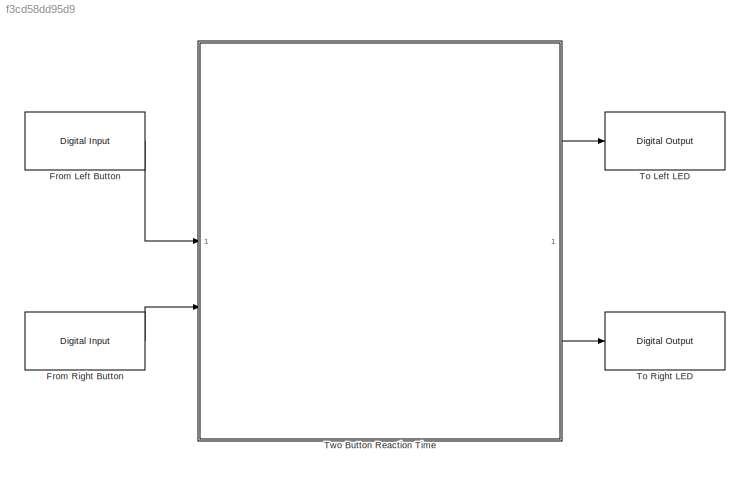
MODEL slx_f3cd58dd95d9
KIND model
CONFIG AbsTol = auto
CONFIG EnableMultiTasking = on
CONFIG FixedStep = 0.001
CONFIG MaxStep = auto
CONFIG MinStep = auto
CONFIG RelTol = 1e-3
CONFIG SampleTimeConstraint = Unconstrained
CONFIG SolverName = FixedStepAuto
CONFIG StartTime = 0.0
CONFIG StopTime = Inf
BLOCK [Reference] From Left Button  REF=arduinolib/Digital Input
  SourceBlock = arduinolib/Digital Input
  SourceType = Arduino Digital Input
BLOCK [Reference] From Right Button  REF=arduinolib/Digital Input
  SourceBlock = arduinolib/Digital Input
  SourceType = Arduino Digital Input
BLOCK [Reference] To Left LED  REF=arduinolib/Digital Output
  SourceBlock = arduinolib/Digital Output
  SourceType = Arduino Digital Output
BLOCK [Reference] To Right LED  REF=arduinolib/Digital Output
  SourceBlock = arduinolib/Digital Output
  SourceType = Arduino Digital Output
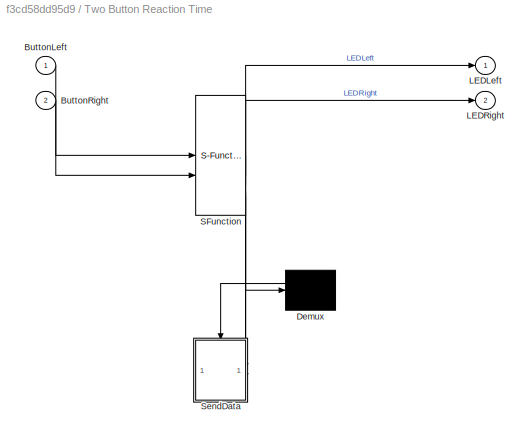
BLOCK [SubSystem] Two Button Reaction Time
  ErrorFcn = Stateflow.Translate.translate
  PermitHierarchicalResolution = ExplicitOnly
  SFBlockType = Chart
  TreatAsAtomicUnit = on
BLOCK [Demux] Two Button Reaction Time/ Demux 
  Outputs = 1
BLOCK [S-Function] Two Button Reaction Time/ SFunction 
  EnableBusSupport = on
  FunctionName = sf_sfun
  PortCounts = [2 5]
  SFcnIsStateOwnerBlock = off
  SFunctionDeploymentMode = off
  Tag = Stateflow S-Function 3
BLOCK [Inport] Two Button Reaction Time/ButtonLeft
BLOCK [Inport] Two Button Reaction Time/ButtonRight
  Port = 2
BLOCK [Outport] Two Button Reaction Time/LEDLeft
BLOCK [Outport] Two Button Reaction Time/LEDRight
  Port = 2
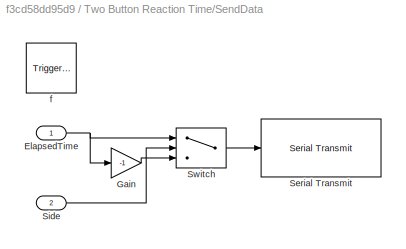
BLOCK [SubSystem] Two Button Reaction Time/SendData
  PreDeleteFcn = Stateflow.SLINSF.SimulinkMan.removePreDeleteFcn
  UndoDeleteFcn = Stateflow.SLINSF.SimulinkMan.restorePreDeleteFcn
BLOCK [Inport] Two Button Reaction Time/SendData/ElapsedTime
  OutDataTypeStr = double
  PortDimensions = 1
  SignalType = real
  VarSizeSig = No
BLOCK [Gain] Two Button Reaction Time/SendData/Gain
  Gain = -1
BLOCK [Reference] Two Button Reaction Time/SendData/Serial Transmit  REF=arduinolib/Serial Transmit
  SourceBlock = arduinolib/Serial Transmit
  SourceType = Arduino Serial Transmit
BLOCK [Inport] Two Button Reaction Time/SendData/Side
  OutDataTypeStr = double
  Port = 2
  PortDimensions = 1
  SignalType = real
  VarSizeSig = No
BLOCK [Switch] Two Button Reaction Time/SendData/Switch
  Criteria = u2 > Threshold
  InputSameDT = off
  SaturateOnIntegerOverflow = off
  Threshold = 1
BLOCK [TriggerPort] Two Button Reaction Time/SendData/f
  CopyFcn = Stateflow.SLINSF.SimulinkMan.removeBlockPreDeleteFcn
  PreDeleteFcn = Stateflow.SLINSF.SimulinkMan.unsafePredeleteFcn
  StatesWhenEnabling = held
  TriggerType = function-call
  VariantControl = (inherit)
LINE From Left Button:1 -> Two Button Reaction Time:1
LINE From Right Button:1 -> Two Button Reaction Time:2
LINE Two Button Reaction Time:1 -> To Left LED:1
LINE Two Button Reaction Time:2 -> To Right LED:1
CHART Two Button Reaction Time states=8 transitions=9
  STATE_LABEL 'SendData(ElapsedTime,Side)'
  STATE_LABEL 'InitialState\nentry:\nStep = 0; % First step\nLEDRight = 1; % Right LED turned on\nLEDLeft = 1; % Left LED turned off'
  STATE_LABEL 'GameOn\nentry:\nLEDRight = 0;\nLEDLeft = 0;\nStep = Step + 1;\nSide = LeftRightSequence(Step);\nTimeStep = TimeStepSequence(Step);\n'
  STATE_LABEL 'y = LeftRightSequence(u)'
  STATE_LABEL 'SCRIPT:\nfunction y = LeftRightSequence(u)\n    Sequence = [1,1,2,2,2,1,2,1,1,2,2,2,2,1,2,1,2,1,1,1,1,2,1,1,2,2,1,2,1,1,2,2,2,1,1,1,1,1,2,2,1,1,2,2,2,...\n        2,2,2,2,1,2,1,1,1,1,1,2,1,1,2,2,2,1,2,1,2,1,1,1,1,1,2,1,1,2,2,1,1,2,2,1,1,2,1,2,2,2,2,1,1,1,1,1,1,...\n        1,2,2,2,2,2,1,1,2,1,1,2,2,2,1,1,1,1,1,1,1,1,1,2,1,2,1,1,1,2,2,2,1,2,1,1,1,2,1,2,1,1,2,1,2,1,1,1,1,...\n        2,1,2,2,1,2,2,1,2,2,...<+154ch>'
  STATE_LABEL 'TurnOnLeft\nen:\nLEDLeft = 1;\nLEDRight = 0;\nen,du:\nElapsedTime = temporalCount(msec);\n'
  STATE_LABEL 'TurnOnRight\nen:\nLEDRight = 1;\nLEDLeft = 0;\nen,du:\nElapsedTime = temporalCount(msec);\n'
  STATE_LABEL 'y = TimeStepSequence(u)'
  STATE_LABEL 'SCRIPT:\nfunction y = TimeStepSequence(u)\n    Sequence = [1.0387,1.4772,1.0461,1.4431,1.4291,0.8904,0.7672,1.0966,0.9758,1.2830,1.0576,0.8140,0.8051,...\n        1.6737,0.8665,0.8686,1.5167,1.3664,1.0298,1.0700,1.5522,1.0704,1.2664,0.9011,1.6204,1.0825,1.1669,...\n        1.0022,1.1312,0.9421,1.6224,1.6284,0.7975,0.9517,0.7650,0.7824,1.0708,1.2186,1.2764,1.0276,1.4089,...\n        1.2953,1.0552,0.7489...<+1273ch>'
  STATE_LABEL 'SendDataBack\nen:\nLEDLeft = 0;\nLEDRight = 0;\nSendData(ElapsedTime,Side)'
CHART  states=0 transitions=0
